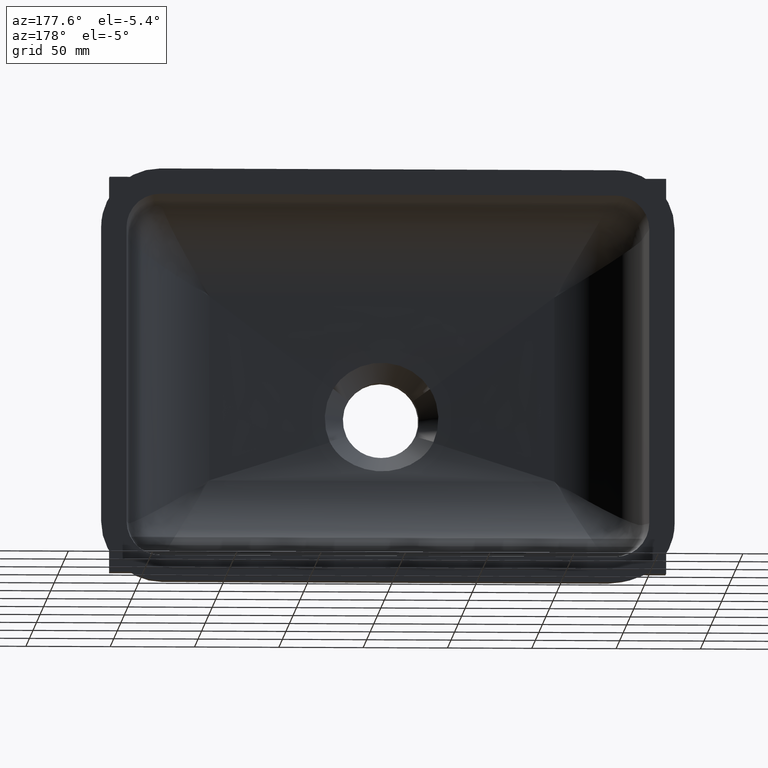
[diagram: clean part render]
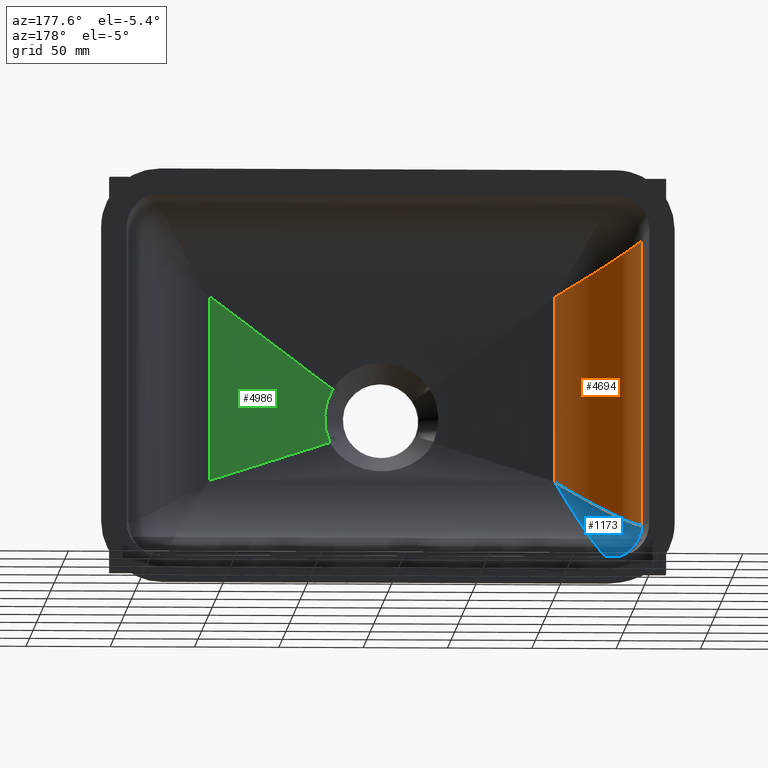
[diagram: same view with three faces highlighted in distinct colors, each labeled with its STEP entity id]
A machine part, auxiliary view with three faces highlighted in distinct colors.
Their STEP definitions:

[orange] entity #4694 — the highlighted cylindrical surface (partial cylindrical patch) has radius 50 mm, axis along (0, 0, -1).
#231 = VECTOR ( 'NONE', #4475, 1000.000000000000000 ) ;
#382 = LINE ( 'NONE', #6539, #6353 ) ;
#619 = ORIENTED_EDGE ( 'NONE', *, *, #7215, .F. ) ;
#680 = DIRECTION ( 'NONE',  ( -1.000000000000000000, 0.0000000000000000000, 0.0000000000000000000 ) ) ;
#1101 = CARTESIAN_POINT ( 'NONE',  ( -102.3668324133667400, -86.00000000000000000, -54.86683241336673000 ) ) ;
#1109 = CARTESIAN_POINT ( 'NONE',  ( -150.3179519458479400, -67.10935544284626500, -83.63750413285546900 ) ) ;
#1122 = CARTESIAN_POINT ( 'NONE',  ( -102.3668324133667400, -86.00000000000000000, -101.5000000000000000 ) ) ;
#1187 = CARTESIAN_POINT ( 'NONE',  ( -152.2455874551777700, -39.47991314245194200, -84.79408543845337900 ) ) ;
#1190 = CARTESIAN_POINT ( 'NONE',  ( -152.2455874551777700, -39.47991314245194200, -84.79408543845337900 ) ) ;
#1242 = CARTESIAN_POINT ( 'NONE',  ( -102.3668324133667400, -86.00000000000000000, 54.86683241336668000 ) ) ;
#1810 = CARTESIAN_POINT ( 'NONE',  ( -102.3668324133667400, -35.99999999999999300, 107.4999999999999900 ) ) ;
#2051 = VERTEX_POINT ( 'NONE', #1190 ) ;
#2069 = ORIENTED_EDGE ( 'NONE', *, *, #3952, .F. ) ;
#2362 = CARTESIAN_POINT ( 'NONE',  ( -150.3179519458479700, -67.10935544284625100, 83.63750413285541200 ) ) ;
#2737 = ORIENTED_EDGE ( 'NONE', *, *, #2931, .T. ) ;
#2742 = CARTESIAN_POINT ( 'NONE',  ( -130.0634361850866600, -86.00000000000000000, -71.48479467639869300 ) ) ;
#2931 = EDGE_CURVE ( 'NONE', #2051, #7005, #382, .T. ) ;
#3122 = CARTESIAN_POINT ( 'NONE',  ( -152.2455874551777700, -39.47991314245194200, 84.79408543845329400 ) ) ;
#3149 = CARTESIAN_POINT ( 'NONE',  ( -102.3668324133667400, -86.00000000000000000, -54.86683241336673000 ) ) ;
#3239 = AXIS2_PLACEMENT_3D ( 'NONE', #1810, #6276, #680 ) ;
#3732 =( BOUNDED_CURVE ( )  B_SPLINE_CURVE ( 3, ( #1187, #1109, #2742, #1101 ),
 .UNSPECIFIED., .F., .F. ) 
 B_SPLINE_CURVE_WITH_KNOTS ( ( 4, 4 ),
 ( 3.211247227318361700, 4.712388980384689700 ),
 .UNSPECIFIED. ) 
 CURVE ( )  GEOMETRIC_REPRESENTATION_ITEM ( )  RATIONAL_B_SPLINE_CURVE ( ( 1.000000000000000000, 0.8208664120627073800, 0.8208664120627073800, 1.000000000000000000 ) ) 
 REPRESENTATION_ITEM ( '' )  );
#3952 = EDGE_CURVE ( 'NONE', #6550, #7005, #4078, .T. ) ;
#4047 = ORIENTED_EDGE ( 'NONE', *, *, #5688, .T. ) ;
#4078 =( BOUNDED_CURVE ( )  B_SPLINE_CURVE ( 3, ( #1242, #4915, #2362, #6241 ),
 .UNSPECIFIED., .F., .F. ) 
 B_SPLINE_CURVE_WITH_KNOTS ( ( 4, 4 ),
 ( 1.570796326794896800, 3.071938079861225000 ),
 .UNSPECIFIED. ) 
 CURVE ( )  GEOMETRIC_REPRESENTATION_ITEM ( )  RATIONAL_B_SPLINE_CURVE ( ( 1.000000000000000000, 0.8208664120627072700, 0.8208664120627072700, 1.000000000000000000 ) ) 
 REPRESENTATION_ITEM ( '' )  );
#4226 = CARTESIAN_POINT ( 'NONE',  ( -102.3668324133667400, -86.00000000000000000, 54.86683241336668000 ) ) ;
#4401 = VERTEX_POINT ( 'NONE', #3149 ) ;
#4442 = CYLINDRICAL_SURFACE ( 'NONE', #3239, 50.00000000000000000 ) ;
#4475 = DIRECTION ( 'NONE',  ( 0.0000000000000000000, -0.0000000000000000000, -1.000000000000000000 ) ) ;
#4694 = ADVANCED_FACE ( 'NONE', ( #6638 ), #4442, .F. ) ;
#4915 = CARTESIAN_POINT ( 'NONE',  ( -130.0634361850866900, -86.00000000000000000, 71.48479467639862200 ) ) ;
#5688 = EDGE_CURVE ( 'NONE', #6550, #4401, #5934, .T. ) ;
#5934 = LINE ( 'NONE', #1122, #231 ) ;
#6128 = DIRECTION ( 'NONE',  ( 0.0000000000000000000, 0.0000000000000000000, 1.000000000000000000 ) ) ;
#6241 = CARTESIAN_POINT ( 'NONE',  ( -152.2455874551777700, -39.47991314245194200, 84.79408543845329400 ) ) ;
#6276 = DIRECTION ( 'NONE',  ( 0.0000000000000000000, 0.0000000000000000000, -1.000000000000000000 ) ) ;
#6353 = VECTOR ( 'NONE', #6128, 1000.000000000000000 ) ;
#6539 = CARTESIAN_POINT ( 'NONE',  ( -152.2455874551777700, -39.47991314245194200, 101.4999999999998700 ) ) ;
#6550 = VERTEX_POINT ( 'NONE', #4226 ) ;
#6638 = FACE_OUTER_BOUND ( 'NONE', #7079, .T. ) ;
#7005 = VERTEX_POINT ( 'NONE', #3122 ) ;
#7079 = EDGE_LOOP ( 'NONE', ( #2737, #2069, #4047, #619 ) ) ;
#7215 = EDGE_CURVE ( 'NONE', #2051, #4401, #3732, .T. ) ;

[blue] entity #1173 — the highlighted face is a freeform B-spline surface patch.
#160 = CARTESIAN_POINT ( 'NONE',  ( -151.9546979903067600, -42.59459716973226800, -84.61955175952610400 ) ) ;
#181 = CARTESIAN_POINT ( 'NONE',  ( -149.8540879782537400, -51.72913485296878400, -83.35918575229723600 ) ) ;
#207 = CARTESIAN_POINT ( 'NONE',  ( -134.0456235679424700, -75.30340541278926000, -86.54562356793471200 ) ) ;
#234 = CARTESIAN_POINT ( 'NONE',  ( -142.7498208071912700, -66.32301682484693100, -95.24982080718390900 ) ) ;
#253 = CARTESIAN_POINT ( 'NONE',  ( -115.1088094678302000, -81.37384830945870800, -76.10346083745423600 ) ) ;
#278 = CARTESIAN_POINT ( 'NONE',  ( -102.3668324133667400, -86.00000000000000000, -54.86683241336673700 ) ) ;
#721 = CARTESIAN_POINT ( 'NONE',  ( -151.6331426666724000, -45.14820042827648900, -104.1331426666724300 ) ) ;
#741 = CARTESIAN_POINT ( 'NONE',  ( -145.6300952000683500, -61.92017734467632600, -98.13009520005402900 ) ) ;
#764 = CARTESIAN_POINT ( 'NONE',  ( -123.5146382454544900, -71.49845666594630700, -90.11317546685145900 ) ) ;
#790 = CARTESIAN_POINT ( 'NONE',  ( -144.4817876390592300, -62.99584543306259100, -80.13580554878464600 ) ) ;
#815 = CARTESIAN_POINT ( 'NONE',  ( -123.6034608374696400, -81.37384830945264000, -67.60880946781242100 ) ) ;
#839 = CARTESIAN_POINT ( 'NONE',  ( -104.8687572121353800, -85.99999999998158300, -57.36875721216299700 ) ) ;
#1101 = CARTESIAN_POINT ( 'NONE',  ( -102.3668324133667400, -86.00000000000000000, -54.86683241336673000 ) ) ;
#1109 = CARTESIAN_POINT ( 'NONE',  ( -150.3179519458479400, -67.10935544284626500, -83.63750413285546900 ) ) ;
#1173 = ADVANCED_FACE ( 'NONE', ( #2110 ), #6610, .F. ) ;
#1187 = CARTESIAN_POINT ( 'NONE',  ( -152.2455874551777700, -39.47991314245194200, -84.79408543845337900 ) ) ;
#1190 = CARTESIAN_POINT ( 'NONE',  ( -152.2455874551777700, -39.47991314245194200, -84.79408543845337900 ) ) ;
#1264 = ORIENTED_EDGE ( 'NONE', *, *, #6437, .F. ) ;
#1295 = CARTESIAN_POINT ( 'NONE',  ( -131.8141655357529200, -45.68028017418392000, -103.9457209506697000 ) ) ;
#1314 = CARTESIAN_POINT ( 'NONE',  ( -146.5185327002703600, -60.31480739796359800, -99.01853270027713400 ) ) ;
#1345 = CARTESIAN_POINT ( 'NONE',  ( -125.4170079780782300, -68.04032403718801400, -93.28379168788465800 ) ) ;
#1373 = CARTESIAN_POINT ( 'NONE',  ( -146.0863618589676800, -60.31147608359320600, -81.09855008072490500 ) ) ;
#1400 = CARTESIAN_POINT ( 'NONE',  ( -114.8605774798830100, -84.57516994575330200, -67.36057747988300500 ) ) ;
#1856 = CARTESIAN_POINT ( 'NONE',  ( -132.2287873843783900, -41.03981110110007800, -104.6367573650395400 ) ) ;
#1880 = CARTESIAN_POINT ( 'NONE',  ( -129.0421163612717000, -58.93162972409560800, -99.32563899321999700 ) ) ;
#1910 = CARTESIAN_POINT ( 'NONE',  ( -126.0072290385652000, -66.82260588855773200, -94.26749345536683200 ) ) ;
#1933 = CARTESIAN_POINT ( 'NONE',  ( -146.8256389932186900, -58.93162972409836400, -81.54211636127880100 ) ) ;
#1960 = CARTESIAN_POINT ( 'NONE',  ( -109.8066274927945800, -84.53894278995012700, -67.26649087909253000 ) ) ;
#2002 = CARTESIAN_POINT ( 'NONE',  ( -131.1375041328555000, -67.10935544284626500, -102.8179519458479700 ) ) ;
#2051 = VERTEX_POINT ( 'NONE', #1190 ) ;
#2110 = FACE_OUTER_BOUND ( 'NONE', #2237, .T. ) ;
#2208 = EDGE_CURVE ( 'NONE', #4401, #2480, #2361, .T. ) ;
#2237 = EDGE_LOOP ( 'NONE', ( #3598, #1264, #5506 ) ) ;
#2355 = CARTESIAN_POINT ( 'NONE',  ( -132.2940854384533800, -39.47991314245192000, -104.7455874551777800 ) ) ;
#2361 =( BOUNDED_CURVE ( )  B_SPLINE_CURVE ( 3, ( #6884, #3419, #2002, #4092 ),
 .UNSPECIFIED., .F., .F. ) 
 B_SPLINE_CURVE_WITH_KNOTS ( ( 4, 4 ),
 ( 1.570796326794896800, 3.071938079861225500 ),
 .UNSPECIFIED. ) 
 CURVE ( )  GEOMETRIC_REPRESENTATION_ITEM ( )  RATIONAL_B_SPLINE_CURVE ( ( 1.000000000000000000, 0.8208664120627071600, 0.8208664120627071600, 1.000000000000000000 ) ) 
 REPRESENTATION_ITEM ( '' )  );
#2400 = CARTESIAN_POINT ( 'NONE',  ( -152.2455874551777700, -39.47991314245194900, -84.79408543845337900 ) ) ;
#2421 = CARTESIAN_POINT ( 'NONE',  ( -148.8984575365152000, -55.08537264504345600, -101.3984575365352200 ) ) ;
#2439 = CARTESIAN_POINT ( 'NONE',  ( -119.9636639455209100, -76.61583226581430500, -84.19488496698207300 ) ) ;
#2465 = CARTESIAN_POINT ( 'NONE',  ( -139.6191499489353900, -70.13115149427947900, -92.11914994894303300 ) ) ;
#2480 = VERTEX_POINT ( 'NONE', #2355 ) ;
#2483 = CARTESIAN_POINT ( 'NONE',  ( -148.7784310189558400, -54.66570757248298000, -82.71379157672191700 ) ) ;
#2495 = CARTESIAN_POINT ( 'NONE',  ( -134.1825992462610500, -74.69802938221651800, -73.95629251309334500 ) ) ;
#2516 = CARTESIAN_POINT ( 'NONE',  ( -114.7664908790749200, -84.53894278995346700, -62.30662749279456800 ) ) ;
#2742 = CARTESIAN_POINT ( 'NONE',  ( -130.0634361850866600, -86.00000000000000000, -71.48479467639869300 ) ) ;
#2946 = CARTESIAN_POINT ( 'NONE',  ( -150.2001904996591900, -51.27451414680257400, -102.7001904996389400 ) ) ;
#2992 = CARTESIAN_POINT ( 'NONE',  ( -129.4332125696906000, -78.58276729533224600, -81.93321256969059600 ) ) ;
#3015 = CARTESIAN_POINT ( 'NONE',  ( -140.6860997367418200, -68.92542169610273100, -93.18609973674907100 ) ) ;
#3040 = CARTESIAN_POINT ( 'NONE',  ( -127.0483526336645500, -79.94369395715584400, -79.54835263371659000 ) ) ;
#3062 = CARTESIAN_POINT ( 'NONE',  ( -105.4942406611270200, -86.00000000000000000, -56.74327736207813900 ) ) ;
#3149 = CARTESIAN_POINT ( 'NONE',  ( -102.3668324133667400, -86.00000000000000000, -54.86683241336673000 ) ) ;
#3419 = CARTESIAN_POINT ( 'NONE',  ( -118.9847946763987100, -86.00000000000000000, -82.56343618508665800 ) ) ;
#3519 = CARTESIAN_POINT ( 'NONE',  ( -151.4457209506693400, -45.68028017418603800, -84.31416553575294900 ) ) ;
#3544 = CARTESIAN_POINT ( 'NONE',  ( -130.8591857522972400, -51.72913485296878400, -102.3540879782537600 ) ) ;
#3568 = CARTESIAN_POINT ( 'NONE',  ( -138.7066313533791500, -70.37825093438338800, -76.67071177737139500 ) ) ;
#3589 = CARTESIAN_POINT ( 'NONE',  ( -127.1166285397291600, -64.30036495909315900, -96.11649262396812800 ) ) ;
#3598 = ORIENTED_EDGE ( 'NONE', *, *, #2208, .T. ) ;
#3613 = CARTESIAN_POINT ( 'NONE',  ( -116.7898896898230400, -79.95377615569415800, -78.90526120743557200 ) ) ;
#3635 = CARTESIAN_POINT ( 'NONE',  ( -107.3850357388753300, -85.82245156197244300, -59.88503573881185100 ) ) ;
#3732 =( BOUNDED_CURVE ( )  B_SPLINE_CURVE ( 3, ( #1187, #1109, #2742, #1101 ),
 .UNSPECIFIED., .F., .F. ) 
 B_SPLINE_CURVE_WITH_KNOTS ( ( 4, 4 ),
 ( 3.211247227318361700, 4.712388980384689700 ),
 .UNSPECIFIED. ) 
 CURVE ( )  GEOMETRIC_REPRESENTATION_ITEM ( )  RATIONAL_B_SPLINE_CURVE ( ( 1.000000000000000000, 0.8208664120627073800, 0.8208664120627073800, 1.000000000000000000 ) ) 
 REPRESENTATION_ITEM ( '' )  );
#3781 = CARTESIAN_POINT ( 'NONE',  ( -132.2940854384533500, -38.08794788547116600, -84.79408543845337900 ) ) ;
#3857 = CARTESIAN_POINT ( 'NONE',  ( -151.1188039719280900, -47.21117270676774800, -84.11801534850072000 ) ) ;
#4068 = CARTESIAN_POINT ( 'NONE',  ( -150.7531944764779200, -49.28044993897730600, -103.2531944764779300 ) ) ;
#4089 = CARTESIAN_POINT ( 'NONE',  ( -130.2137915767218900, -54.66570757248298000, -101.2784310189558600 ) ) ;
#4092 = CARTESIAN_POINT ( 'NONE',  ( -132.2940854384533800, -39.47991314245192000, -104.7455874551777800 ) ) ;
#4113 = CARTESIAN_POINT ( 'NONE',  ( -124.1707117773713900, -70.37825093438726800, -91.20663135337571200 ) ) ;
#4143 = CARTESIAN_POINT ( 'NONE',  ( -127.6358055487773300, -62.99584543305615400, -96.98178763906310000 ) ) ;
#4166 = CARTESIAN_POINT ( 'NONE',  ( -119.7802919732500700, -83.12862248430137400, -72.28029197325007300 ) ) ;
#4186 = DIRECTION ( 'NONE',  ( 0.06943030862496539500, -0.9951677569578329900, 0.06943030862496431300 ) ) ;
#4196 = CARTESIAN_POINT ( 'NONE',  ( -104.2432773620081700, -86.00000000000000000, -57.99424066118225300 ) ) ;
#4401 = VERTEX_POINT ( 'NONE', #3149 ) ;
#4609 = CARTESIAN_POINT ( 'NONE',  ( -132.1195517595260800, -42.59459716973438500, -104.4546979903064000 ) ) ;
#4635 = CARTESIAN_POINT ( 'NONE',  ( -129.8497376303504300, -56.10874364724994500, -100.6716744416612200 ) ) ;
#4662 = CARTESIAN_POINT ( 'NONE',  ( -136.3158583441262400, -73.39715006444231400, -88.81585834413415600 ) ) ;
#4682 = CARTESIAN_POINT ( 'NONE',  ( -128.5985500807322000, -60.31147608359964400, -98.58636185896382600 ) ) ;
#4707 = CARTESIAN_POINT ( 'NONE',  ( -111.6171423575464700, -83.66645527167921200, -70.28401565368454800 ) ) ;
#5155 = CARTESIAN_POINT ( 'NONE',  ( -152.1494098878770300, -40.85845827376285700, -104.6494098878770300 ) ) ;
#5177 = CARTESIAN_POINT ( 'NONE',  ( -151.9553776244406200, -43.01990394042152100, -104.4553776244601300 ) ) ;
#5196 = CARTESIAN_POINT ( 'NONE',  ( -122.2300289777819800, -82.20558196755493400, -74.73002897773166400 ) ) ;
#5214 = CARTESIAN_POINT ( 'NONE',  ( -137.4331762358500800, -72.36539355333735600, -89.93317623584256600 ) ) ;
#5246 = CARTESIAN_POINT ( 'NONE',  ( -143.7434811999385700, -64.92398276525837300, -96.24348119995261200 ) ) ;
#5273 = CARTESIAN_POINT ( 'NONE',  ( -117.7840156536691600, -83.66645527168526500, -64.11714235756424800 ) ) ;
#5506 = ORIENTED_EDGE ( 'NONE', *, *, #7215, .T. ) ;
#5628 = CIRCLE ( 'NONE', #6919, 19.99999999999999300 ) ;
#5710 = CARTESIAN_POINT ( 'NONE',  ( -132.2940854384533500, -39.47991314245194900, -104.7455874551777800 ) ) ;
#5752 = CARTESIAN_POINT ( 'NONE',  ( -121.4562925131094500, -74.69802938221651800, -86.68259924626106300 ) ) ;
#5782 = CARTESIAN_POINT ( 'NONE',  ( -140.7837916878812100, -68.04032403719189400, -77.91700797807821700 ) ) ;
#5804 = CARTESIAN_POINT ( 'NONE',  ( -148.1716744416625300, -56.10874364724718800, -82.34973763034332700 ) ) ;
#5824 = CARTESIAN_POINT ( 'NONE',  ( -112.3672350715046400, -85.11394622184258200, -64.86723507156891300 ) ) ;
#6270 = CARTESIAN_POINT ( 'NONE',  ( -152.1367573650394700, -41.03981110110086700, -84.72878738435881000 ) ) ;
#6284 = CARTESIAN_POINT ( 'NONE',  ( -131.1405251487088900, -50.23560199739982600, -102.8229869722901400 ) ) ;
#6317 = CARTESIAN_POINT ( 'NONE',  ( -137.6131754668514600, -71.49845666594630700, -76.01463824546256400 ) ) ;
#6339 = CARTESIAN_POINT ( 'NONE',  ( -141.7674934553632500, -66.82260588856266300, -78.50722903856521400 ) ) ;
#6354 = CARTESIAN_POINT ( 'NONE',  ( -150.3229869722879900, -50.23560199740792600, -83.64052514872233200 ) ) ;
#6367 = CARTESIAN_POINT ( 'NONE',  ( -126.4052612074599600, -79.95377615567876700, -69.28988968980601700 ) ) ;
#6393 = CARTESIAN_POINT ( 'NONE',  ( -108.6215252079704600, -85.70572718789773600, -58.61964809012604900 ) ) ;
#6437 = EDGE_CURVE ( 'NONE', #2051, #2480, #5628, .T. ) ;
#6462 = CARTESIAN_POINT ( 'NONE',  ( -102.3668324133667400, -86.00000000000000000, -54.86683241336673700 ) ) ;
#6537 = DIRECTION ( 'NONE',  ( 0.9975751008362208100, 0.06959826284903895800, 0.0000000000000000000 ) ) ;
#6610 =( BOUNDED_SURFACE ( )  B_SPLINE_SURFACE ( 3, 2, ( 
 ( #7103, #6462, #278 ),
 ( #3062, #839, #4196 ),
 ( #6393, #3635, #6955 ),
 ( #2516, #5824, #1960 ),
 ( #5273, #1400, #4707 ),
 ( #815, #4166, #253 ),
 ( #6367, #5196, #3613 ),
 ( #6933, #3040, #2439 ),
 ( #2495, #2992, #5752 ),
 ( #6317, #6881, #764 ),
 ( #3568, #207, #4113 ),
 ( #5782, #4662, #1345 ),
 ( #6339, #5214, #1910 ),
 ( #6906, #2465, #3589 ),
 ( #790, #3015, #4143 ),
 ( #1373, #234, #4682 ),
 ( #1933, #5246, #1880 ),
 ( #5804, #741, #4635 ),
 ( #2483, #1314, #4089 ),
 ( #181, #6859, #3544 ),
 ( #6354, #2421, #6284 ),
 ( #3857, #2946, #6837 ),
 ( #3519, #4068, #1295 ),
 ( #160, #721, #4609 ),
 ( #6270, #5177, #1856 ),
 ( #2400, #5155, #5710 ) ),
 .UNSPECIFIED., .F., .F., .T. ) 
 B_SPLINE_SURFACE_WITH_KNOTS ( ( 4, 2, 2, 2, 2, 2, 2, 2, 2, 2, 2, 2, 4 ),
 ( 3, 3 ),
 ( 1.570796326794896600, 1.758439045928187600, 1.946081765061478600, 2.133724484194769600, 2.321367203328060600, 2.415188562894706100, 2.509009922461351600, 2.602831282027997100, 2.696652641594642600, 2.790474001161288100, 2.884295360727933600, 2.978116720294579500, 3.071938079861225000 ),
 ( 0.0000000000000000000, 1.000000000000000000 ),
 .UNSPECIFIED. ) 
 GEOMETRIC_REPRESENTATION_ITEM ( )  RATIONAL_B_SPLINE_SURFACE ( (
 ( 1.000000000000000000, 1.000000000000000000, 1.000000000000000000),
 ( 1.000000000000000000, 1.000000000000000000, 1.000000000000000000),
 ( 1.000000000000000000, 0.9970442446277595300, 1.000000000000000000),
 ( 1.000000000000000000, 0.9854801652626660200, 1.000000000000000000),
 ( 1.000000000000000000, 0.9768711931111155900, 1.000000000000000000),
 ( 1.000000000000000000, 0.9547860275401212100, 1.000000000000000000),
 ( 1.000000000000000000, 0.9413087113431924900, 1.000000000000000000),
 ( 1.000000000000000000, 0.9108262010520832300, 1.000000000000000000),
 ( 1.000000000000000000, 0.8938202267330919200, 1.000000000000000000),
 ( 1.000000000000000000, 0.8671100626020669100, 1.000000000000000000),
 ( 1.000000000000000000, 0.8580111827199726800, 1.000000000000000000),
 ( 1.000000000000000000, 0.8397183069959105500, 1.000000000000000000),
 ( 1.000000000000000000, 0.8305244789502966900, 1.000000000000000000),
 ( 1.000000000000000000, 0.8123708726684350000, 1.000000000000000000),
 ( 1.000000000000000000, 0.8034114278948841800, 1.000000000000000000),
 ( 1.000000000000000000, 0.7860816511220388700, 1.000000000000000000),
 ( 1.000000000000000000, 0.7777118792065768100, 1.000000000000000000),
 ( 1.000000000000000000, 0.7619292309190804900, 1.000000000000000000),
 ( 1.000000000000000000, 0.7545171746998381400, 1.000000000000000000),
 ( 1.000000000000000000, 0.7410098351178821000, 1.000000000000000000),
 ( 1.000000000000000000, 0.7349155929992469100, 1.000000000000000000),
 ( 1.000000000000000000, 0.7243676792166087200, 1.000000000000000000),
 ( 1.000000000000000000, 0.7199151181088295800, 1.000000000000000000),
 ( 1.000000000000000000, 0.7129052916117736300, 1.000000000000000000),
 ( 1.000000000000000000, 0.7103471719582210600, 1.000000000000000000),
 ( 1.000000000000000000, 0.7088172959908650700, 1.000000000000000000) ) ) 
 REPRESENTATION_ITEM ( '' )  SURFACE ( )  );
#6837 = CARTESIAN_POINT ( 'NONE',  ( -131.6180153485141500, -47.21117270677585500, -103.6188039719259700 ) ) ;
#6859 = CARTESIAN_POINT ( 'NONE',  ( -148.1554980837245000, -56.89630291443458500, -100.6554980837175500 ) ) ;
#6881 = CARTESIAN_POINT ( 'NONE',  ( -132.8931798740360600, -76.18143561575388400, -85.39317987403607900 ) ) ;
#6884 = CARTESIAN_POINT ( 'NONE',  ( -102.3668324133667400, -86.00000000000000000, -54.86683241336673000 ) ) ;
#6906 = CARTESIAN_POINT ( 'NONE',  ( -143.6164926239717100, -64.30036495908824200, -79.61662853972914900 ) ) ;
#6919 = AXIS2_PLACEMENT_3D ( 'NONE', #3781, #4186, #6537 ) ;
#6933 = CARTESIAN_POINT ( 'NONE',  ( -131.6948849669576600, -76.61583226582969500, -72.46366394553795900 ) ) ;
#6955 = CARTESIAN_POINT ( 'NONE',  ( -106.1196480901260600, -85.70572718790107600, -61.12152520795285700 ) ) ;
#7103 = CARTESIAN_POINT ( 'NONE',  ( -102.3668324133667400, -86.00000000000000000, -54.86683241336673700 ) ) ;
#7215 = EDGE_CURVE ( 'NONE', #2051, #4401, #3732, .T. ) ;

[green] entity #4986 — the highlighted face is a freeform B-spline surface patch.
#1 = CARTESIAN_POINT ( 'NONE',  ( 33.37463524318554400, -89.43480194442609800, -22.23175711203549900 ) ) ;
#67 = CARTESIAN_POINT ( 'NONE',  ( 33.62477162573431900, -89.43383764727961700, -19.82505766653309500 ) ) ;
#134 = CARTESIAN_POINT ( 'NONE',  ( 32.36649244549361300, -89.44808337882908200, -26.97925877213039700 ) ) ;
#178 = VERTEX_POINT ( 'NONE', #5169 ) ;
#304 = CARTESIAN_POINT ( 'NONE',  ( 28.97549084726484700, -89.55682688355157900, -0.03076112280052389900 ) ) ;
#328 = CARTESIAN_POINT ( 'NONE',  ( 28.84172925055980500, -89.55995105364630100, 0.1439082750972291200 ) ) ;
#379 = LINE ( 'NONE', #3890, #7172 ) ;
#478 = VECTOR ( 'NONE', #2875, 1000.000000000000000 ) ;
#553 = CARTESIAN_POINT ( 'NONE',  ( 33.09302024648857100, -89.46253644479131100, -11.00317179564236400 ) ) ;
#576 = CARTESIAN_POINT ( 'NONE',  ( 29.13049040360615600, -89.55454570716388200, -0.3475744266658581400 ) ) ;
#742 = CARTESIAN_POINT ( 'NONE',  ( 102.3668324133667800, -86.00000000000000000, -18.28894413778886700 ) ) ;
#755 = EDGE_CURVE ( 'NONE', #5592, #1685, #4253, .T. ) ;
#863 = CARTESIAN_POINT ( 'NONE',  ( 102.3668324133667800, -86.00000000000000000, -55.53095855407815400 ) ) ;
#960 = CARTESIAN_POINT ( 'NONE',  ( 30.90231864827801200, -89.47166367813916600, -31.05460434956790300 ) ) ;
#999 = CARTESIAN_POINT ( 'NONE',  ( 30.64578565232305300, -89.47587796860722200, -31.63257141782190000 ) ) ;
#1027 = B_SPLINE_CURVE_WITH_KNOTS ( 'NONE', 3,
 ( #2111, #3830, #576, #1128, #3920, #2213, #4526, #1048, #2190, #7160, #5267, #3806, #6614, #5491, #553, #4460, #4933, #4906, #2394, #5706, #5012, #67, #6456, #1, #6149, #3906, #1419, #134, #5211, #2418, #1850, #3378, #6266, #960, #6542, #5412 ),
 .UNSPECIFIED., .F., .F.,
 ( 4, 2, 2, 2, 2, 2, 2, 2, 2, 2, 2, 2, 2, 2, 2, 2, 2, 4 ),
 ( 0.0000000000000000000, 0.01603509785888660600, 0.05276397664189212000, 0.08949285542489721100, 0.1629506129909078200, 0.2364083705569184300, 0.3098661281229294600, 0.3833238856889404900, 0.4567816432549506900, 0.5302394008209616600, 0.6036971583869726900, 0.6771549159529829400, 0.7506126735189939700, 0.8240704310850050000, 0.8975281886510151400, 0.9342570674340202600, 0.9709859462170261600, 1.000000000000000000 ),
 .UNSPECIFIED. ) ;
#1048 = CARTESIAN_POINT ( 'NONE',  ( 30.67360916267600900, -89.52347498602341600, -3.344710943273815600 ) ) ;
#1128 = CARTESIAN_POINT ( 'NONE',  ( 29.41434090397368800, -89.54913937633966700, -0.8465363751243796300 ) ) ;
#1143 = CARTESIAN_POINT ( 'NONE',  ( 102.3668324133667800, -86.00000000000000000, 18.28894413778891000 ) ) ;
#1318 = VERTEX_POINT ( 'NONE', #4048 ) ;
#1402 = CARTESIAN_POINT ( 'NONE',  ( 19.64874821790261100, -90.00000000000000000, -28.46930581545963100 ) ) ;
#1419 = CARTESIAN_POINT ( 'NONE',  ( 32.77831874390508900, -89.44201835605895200, -25.40757888039388100 ) ) ;
#1680 = CARTESIAN_POINT ( 'NONE',  ( 102.3668324133667800, -86.00000000000000000, -36.57788827557777000 ) ) ;
#1685 = VERTEX_POINT ( 'NONE', #2796 ) ;
#1724 = VECTOR ( 'NONE', #3967, 999.9999999999998900 ) ;
#1744 = CARTESIAN_POINT ( 'NONE',  ( 28.95456873539517400, -89.55784084961857200, -0.04641111050792887100 ) ) ;
#1763 = FACE_OUTER_BOUND ( 'NONE', #4626, .T. ) ;
#1772 = EDGE_CURVE ( 'NONE', #1685, #4975, #1027, .T. ) ;
#1850 = CARTESIAN_POINT ( 'NONE',  ( 31.61171500603369500, -89.46005906452248300, -29.27167350067065100 ) ) ;
#1912 = CARTESIAN_POINT ( 'NONE',  ( 102.3668324133667800, -86.00000000000000000, 56.83649638907778000 ) ) ;
#2033 = EDGE_CURVE ( 'NONE', #4975, #178, #7165, .T. ) ;
#2080 = CARTESIAN_POINT ( 'NONE',  ( 19.77030588322914900, -90.00000000000000000, -28.24251172861873400 ) ) ;
#2111 = CARTESIAN_POINT ( 'NONE',  ( 28.95456873539517400, -89.55784084961857200, -0.04641111050792887100 ) ) ;
#2190 = CARTESIAN_POINT ( 'NONE',  ( 30.99501997959170700, -89.51640162695611000, -4.080675028709010600 ) ) ;
#2213 = CARTESIAN_POINT ( 'NONE',  ( 29.97582800994206000, -89.53800879020209900, -1.904780902313222300 ) ) ;
#2302 = CARTESIAN_POINT ( 'NONE',  ( 102.3668324133667800, -86.00000000000000000, -56.85921083550108800 ) ) ;
#2323 = CARTESIAN_POINT ( 'NONE',  ( 20.66795937508573600, -89.99999999999998600, -8.432269565002515700 ) ) ;
#2394 = CARTESIAN_POINT ( 'NONE',  ( 33.66380212901668000, -89.44093309106219200, -15.77703890169947200 ) ) ;
#2418 = CARTESIAN_POINT ( 'NONE',  ( 31.74724575394734300, -89.45786942447932700, -28.89384675413983700 ) ) ;
#2543 = CARTESIAN_POINT ( 'NONE',  ( 102.3668324133667800, -86.00000000000000000, 9.144472068894469200 ) ) ;
#2589 = CARTESIAN_POINT ( 'NONE',  ( 28.69142018272151200, -89.56281067319076800, 0.3916813537330987600 ) ) ;
#2664 = CARTESIAN_POINT ( 'NONE',  ( 19.77099880256759300, -90.00000000000000000, -6.758781073511015900 ) ) ;
#2681 = CARTESIAN_POINT ( 'NONE',  ( 28.76698962294586800, -89.56136531186099600, 0.2680069067351717500 ) ) ;
#2796 = CARTESIAN_POINT ( 'NONE',  ( 28.95456873539517400, -89.55784084961857200, -0.04641111050792887100 ) ) ;
#2829 = CARTESIAN_POINT ( 'NONE',  ( 28.97549084726484700, -89.55682688355157900, -0.03076112280052389900 ) ) ;
#2875 = DIRECTION ( 'NONE',  ( 0.9503168878593151200, 0.04605601399978090400, -0.3078581755026783000 ) ) ;
#2907 = CARTESIAN_POINT ( 'NONE',  ( 19.71091288924277100, -90.00000000000000000, -6.646676832220281400 ) ) ;
#3018 = CARTESIAN_POINT ( 'NONE',  ( 21.34340699367400200, -90.00000000000001400, -10.14158647194745900 ) ) ;
#3064 = CARTESIAN_POINT ( 'NONE',  ( 28.88187775674637700, -89.55878454085508600, 0.1107719103334461300 ) ) ;
#3142 = CARTESIAN_POINT ( 'NONE',  ( 102.3668324133667800, -86.00000000000000000, 55.52338707193702300 ) ) ;
#3212 = CARTESIAN_POINT ( 'NONE',  ( 28.69142018272151200, -89.56281067319076800, 0.3916813537330987600 ) ) ;
#3215 = CARTESIAN_POINT ( 'NONE',  ( 19.65082697591794800, -90.00000000000000000, -6.534572590929546000 ) ) ;
#3342 = DIRECTION ( 'NONE',  ( -0.0000000000000000000, -0.0000000000000000000, 1.000000000000000000 ) ) ;
#3378 = CARTESIAN_POINT ( 'NONE',  ( 31.32781114164925300, -89.46467898060525700, -30.02153645340040800 ) ) ;
#3453 = VERTEX_POINT ( 'NONE', #2829 ) ;
#3493 = B_SPLINE_CURVE_WITH_KNOTS ( 'NONE', 3,
 ( #304, #3064, #6394, #4167 ),
 .UNSPECIFIED., .F., .F.,
 ( 4, 4 ),
 ( 1.510121986784430400E-009, 0.0005091081624526525500 ),
 .UNSPECIFIED. ) ;
#3705 = ORIENTED_EDGE ( 'NONE', *, *, #6929, .F. ) ;
#3806 = CARTESIAN_POINT ( 'NONE',  ( 32.34497537455403900, -89.48382408495554300, -7.884830183558879200 ) ) ;
#3830 = CARTESIAN_POINT ( 'NONE',  ( 29.04364481558355800, -89.55617402704243100, -0.1973787072371113700 ) ) ;
#3890 = CARTESIAN_POINT ( 'NONE',  ( 102.3668324133667800, -86.00000000000000000, 101.4999999999998600 ) ) ;
#3906 = CARTESIAN_POINT ( 'NONE',  ( 32.95577420169857400, -89.43959040797270200, -24.61663956619290500 ) ) ;
#3920 = CARTESIAN_POINT ( 'NONE',  ( 29.60547547481581200, -89.54540961160842000, -1.196848629522818500 ) ) ;
#3967 = DIRECTION ( 'NONE',  ( 0.8001612059181197900, 0.03877889172827381900, 0.5985300678328426800 ) ) ;
#4030 = ORIENTED_EDGE ( 'NONE', *, *, #5939, .T. ) ;
#4031 = CARTESIAN_POINT ( 'NONE',  ( 61.09895856462959800, -88.00000000000000000, -41.49797354928249100 ) ) ;
#4048 = CARTESIAN_POINT ( 'NONE',  ( 102.3668324133667800, -86.00000000000000000, 54.86683241336665200 ) ) ;
#4167 = CARTESIAN_POINT ( 'NONE',  ( 28.69142018272151200, -89.56281067319076800, 0.3916813537330987600 ) ) ;
#4168 = CARTESIAN_POINT ( 'NONE',  ( 102.3668324133667800, -86.00000000000000000, 36.57788827557778400 ) ) ;
#4181 = LINE ( 'NONE', #5104, #1724 ) ;
#4253 = B_SPLINE_CURVE_WITH_KNOTS ( 'NONE', 3,
 ( #3212, #2681, #328, #5027, #6170, #1744 ),
 .UNSPECIFIED., .F., .F.,
 ( 4, 2, 4 ),
 ( 0.1168887377354668600, 0.1173304384810103200, 0.1174084042543544100 ),
 .UNSPECIFIED. ) ;
#4293 = CARTESIAN_POINT ( 'NONE',  ( 102.3668324133667800, -86.00000000000000000, 54.86683241336665200 ) ) ;
#4460 = CARTESIAN_POINT ( 'NONE',  ( 33.35682216151606400, -89.45387880139733700, -12.58163907490825500 ) ) ;
#4484 = ORIENTED_EDGE ( 'NONE', *, *, #2033, .F. ) ;
#4526 = CARTESIAN_POINT ( 'NONE',  ( 30.15488145616334800, -89.53434246257815200, -2.262178782333874100 ) ) ;
#4626 = EDGE_LOOP ( 'NONE', ( #4030, #5852, #4484, #5888, #4663, #3705 ) ) ;
#4663 = ORIENTED_EDGE ( 'NONE', *, *, #755, .F. ) ;
#4906 = CARTESIAN_POINT ( 'NONE',  ( 33.61477101214276800, -89.44360585910115400, -14.97345262829820600 ) ) ;
#4933 = CARTESIAN_POINT ( 'NONE',  ( 33.46126826229543400, -89.45007483857008900, -13.37569295839905500 ) ) ;
#4966 = CARTESIAN_POINT ( 'NONE',  ( 19.70952705056587800, -90.00000000000000000, -28.35590877203918200 ) ) ;
#4975 = VERTEX_POINT ( 'NONE', #999 ) ;
#4986 = ADVANCED_FACE ( 'NONE', ( #1763 ), #5472, .F. ) ;
#5012 = CARTESIAN_POINT ( 'NONE',  ( 33.69749349700636300, -89.43537289250947700, -18.20988120306505600 ) ) ;
#5027 = CARTESIAN_POINT ( 'NONE',  ( 28.92864109546409400, -89.55832555923696200, -0.002532601528723433700 ) ) ;
#5104 = CARTESIAN_POINT ( 'NONE',  ( 61.09895856462958400, -88.00000000000000000, 23.99797354928245200 ) ) ;
#5169 = CARTESIAN_POINT ( 'NONE',  ( 102.3668324133667800, -86.00000000000000000, -54.86683241336668700 ) ) ;
#5211 = CARTESIAN_POINT ( 'NONE',  ( 32.13442715119850800, -89.45168682926133400, -27.75162194979458300 ) ) ;
#5267 = CARTESIAN_POINT ( 'NONE',  ( 31.85950038090685500, -89.49617759367205800, -6.345821176798971000 ) ) ;
#5372 = CARTESIAN_POINT ( 'NONE',  ( 20.66795937508573600, -90.00000000000000000, -26.56773043499752900 ) ) ;
#5382 = CARTESIAN_POINT ( 'NONE',  ( 102.3668324133667800, -86.00000000000000000, -45.72236034447222900 ) ) ;
#5412 = CARTESIAN_POINT ( 'NONE',  ( 30.64578565232305300, -89.47587796860722200, -31.63257141782190000 ) ) ;
#5472 = B_SPLINE_SURFACE_WITH_KNOTS ( 'NONE', 3, 1, ( 
 ( #3215, #1912 ),
 ( #2907, #5980 ),
 ( #2664, #3142 ),
 ( #7035, #4293 ),
 ( #2323, #6684 ),
 ( #3018, #4168 ),
 ( #6121, #1143 ),
 ( #6163, #2543 ),
 ( #6985, #6418 ),
 ( #5784, #742 ),
 ( #5533, #1680 ),
 ( #5372, #5382 ),
 ( #5952, #6187 ),
 ( #2080, #863 ),
 ( #4966, #5905 ),
 ( #1402, #2302 ) ),
 .UNSPECIFIED., .F., .F., .F.,
 ( 4, 3, 2, 2, 2, 3, 4 ),
 ( 2, 2 ),
 ( -0.01794949598030086100, 0.0000000000000000000, 0.2500000000000000000, 0.5000000000000000000, 0.7500000000000000000, 1.000000000000000000, 1.018156492132841000 ),
 ( 0.0000000000000000000, 1.000000000000000000 ),
 .UNSPECIFIED. ) ;
#5491 = CARTESIAN_POINT ( 'NONE',  ( 32.93366342096617700, -89.46739099186139300, -10.21875673857977800 ) ) ;
#5533 = CARTESIAN_POINT ( 'NONE',  ( 21.34340699367399800, -90.00000000000002800, -24.85841352805257300 ) ) ;
#5592 = VERTEX_POINT ( 'NONE', #2589 ) ;
#5656 = EDGE_CURVE ( 'NONE', #178, #1318, #379, .T. ) ;
#5706 = CARTESIAN_POINT ( 'NONE',  ( 33.70537328463697700, -89.43680985919361600, -17.39496447151920600 ) ) ;
#5784 = CARTESIAN_POINT ( 'NONE',  ( 22.26001279299133300, -90.00000000000000000, -21.26551486563280900 ) ) ;
#5852 = ORIENTED_EDGE ( 'NONE', *, *, #5656, .F. ) ;
#5888 = ORIENTED_EDGE ( 'NONE', *, *, #1772, .F. ) ;
#5905 = CARTESIAN_POINT ( 'NONE',  ( 102.3668324133667800, -86.00000000000000000, -56.19508469478962100 ) ) ;
#5939 = EDGE_CURVE ( 'NONE', #3453, #1318, #4181, .T. ) ;
#5952 = CARTESIAN_POINT ( 'NONE',  ( 19.83108471589241600, -90.00000000000000000, -28.12911468519828500 ) ) ;
#5980 = CARTESIAN_POINT ( 'NONE',  ( 102.3668324133667800, -86.00000000000000000, 56.17994173050740200 ) ) ;
#6121 = CARTESIAN_POINT ( 'NONE',  ( 22.26001279299132600, -89.99999999999997200, -13.73448513436721700 ) ) ;
#6149 = CARTESIAN_POINT ( 'NONE',  ( 33.25381411896343300, -89.43598566725869100, -23.02931091968012500 ) ) ;
#6163 = CARTESIAN_POINT ( 'NONE',  ( 22.49999999999998600, -90.00000000000001400, -15.61678910016078000 ) ) ;
#6170 = CARTESIAN_POINT ( 'NONE',  ( 28.94162836275963400, -89.55808265460281300, -0.02448007533895611700 ) ) ;
#6187 = CARTESIAN_POINT ( 'NONE',  ( 102.3668324133667800, -86.00000000000000000, -54.86683241336669400 ) ) ;
#6266 = CARTESIAN_POINT ( 'NONE',  ( 31.17955208454559800, -89.46710275582067600, -30.39322930536234000 ) ) ;
#6394 = CARTESIAN_POINT ( 'NONE',  ( 28.78722662880451800, -89.56077817920606800, 0.2516248063198278700 ) ) ;
#6418 = CARTESIAN_POINT ( 'NONE',  ( 102.3668324133667800, -86.00000000000000000, -9.144472068894419400 ) ) ;
#6456 = CARTESIAN_POINT ( 'NONE',  ( 33.56012519360418600, -89.43372477705082700, -20.63023055552829300 ) ) ;
#6542 = CARTESIAN_POINT ( 'NONE',  ( 30.77641963021636300, -89.47371199490370900, -31.34337718643232800 ) ) ;
#6614 = CARTESIAN_POINT ( 'NONE',  ( 32.55969043302322100, -89.47803372207454200, -8.659672239008440200 ) ) ;
#6684 = CARTESIAN_POINT ( 'NONE',  ( 102.3668324133667800, -86.00000000000000000, 45.72236034447222200 ) ) ;
#6929 = EDGE_CURVE ( 'NONE', #3453, #5592, #3493, .T. ) ;
#6985 = CARTESIAN_POINT ( 'NONE',  ( 22.49999999999998200, -90.00000000000001400, -19.38321089983926600 ) ) ;
#7035 = CARTESIAN_POINT ( 'NONE',  ( 19.83108471589241600, -90.00000000000000000, -6.870885314801751200 ) ) ;
#7160 = CARTESIAN_POINT ( 'NONE',  ( 31.58723714501143200, -89.50277210124159000, -5.578686943667743300 ) ) ;
#7165 = LINE ( 'NONE', #4031, #478 ) ;
#7172 = VECTOR ( 'NONE', #3342, 1000.000000000000000 ) ;